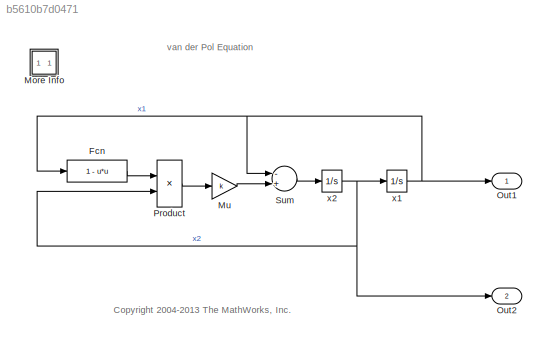
MODEL slx_b5610b7d0471
KIND model
CONFIG AbsTol = 1e-6
CONFIG EnableMultiTasking = off
CONFIG FixedStep = auto
CONFIG MaxStep = auto
CONFIG MinStep = auto
CONFIG RelTol = 1e-3
CONFIG SampleTimeConstraint = Unconstrained
CONFIG Solver = FixedStepAuto
CONFIG SolverName = FixedStepAuto
CONFIG StartTime = 0.0
CONFIG StopTime = 20
WORKSPACE source: MAT-file member
WORKSPACE k = 2
BLOCK [Fcn] Fcn
  Expr = 1 - u*u
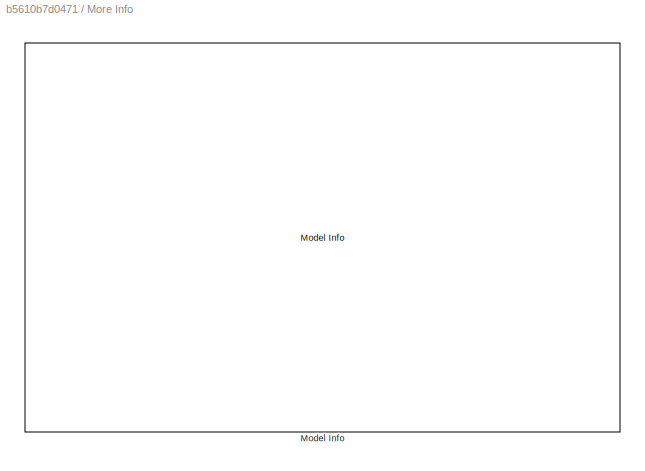
BLOCK [SubSystem] More Info
  Ports = []
  RequestExecContextInheritance = off
BLOCK [Reference] More Info/Model Info  REF=simulink/Model-Wide
Utilities/Model Info
  Ports = []
  SourceBlock = simulink/Model-Wide\nUtilities/Model Info
  SourceProductBaseCode = SL
  SourceProductName = Simulink
  SourceType = CMBlock
BLOCK [Gain] Mu
  Gain = k
BLOCK [Outport] Out1
  IconDisplay = Port number
  InitialOutput = 0
BLOCK [Outport] Out2
  IconDisplay = Port number
  InitialOutput = 0
  Port = 2
BLOCK [Product] Product
  Ports = [2, 1]
BLOCK [Sum] Sum
  Inputs = -+
  Ports = [2, 1]
BLOCK [Integrator] x1
  InitialCondition = 2
  Ports = [1, 1]
BLOCK [Integrator] x2
  Ports = [1, 1]
ANNOTATION (root): <copyright redacted>
ANNOTATION (root): van der Pol Equation
LINE Fcn:1 -> Product:1
LINE Mu:1 -> Sum:2
LINE Product:1 -> Mu:1
LINE Sum:1 -> x2:1
NET x1:1 -> Fcn:1, Out1:1, Sum:1
NET x2:1 -> Out2:1, Product:2, x1:1
note: NET lines group one-source signal fan-out (src -> all destinations, sorted); 1:1 wires keep LINE
